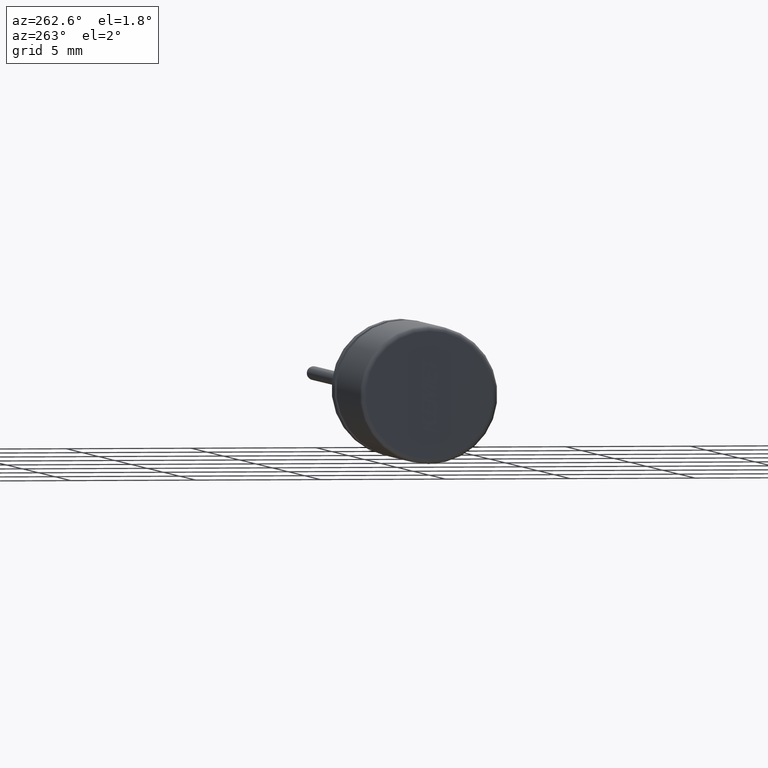
[diagram: clean part render]
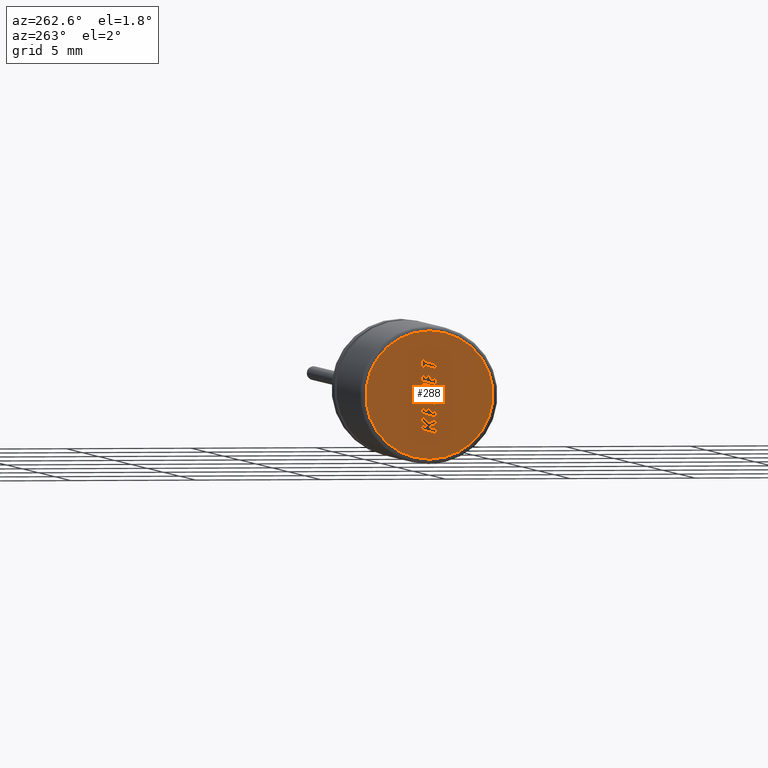
[diagram: same view with one face highlighted and labeled with its STEP entity id]
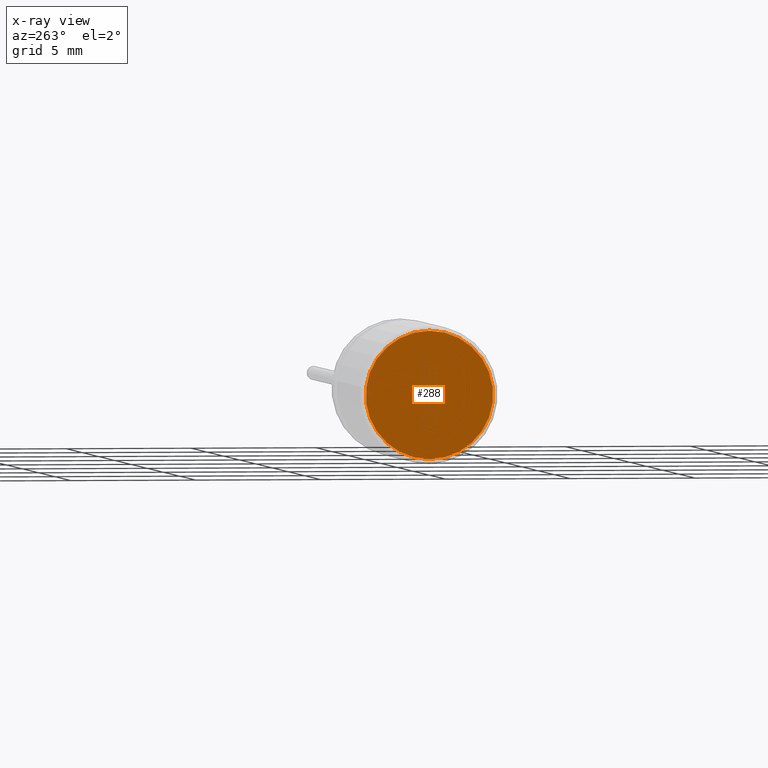
[diagram: x-ray of the same camera — body ghosted, the highlighted face saturated]
A machine part, auxiliary view. The second image highlights one B-rep face of the part: STEP entity #288.
The next image is the same camera in x-ray: the body ghosted, the highlighted face saturated — about 0% of this face is hidden behind the body in this view.
In plain terms, the highlighted planar face has unit normal (1, 0, 0).
Its self-contained STEP definition (entity closure, byte-faithful):
#31 = DIRECTION ( 'NONE',  ( 0.0000000000000000000, 0.0000000000000000000, -1.000000000000000000 ) ) ;
#50 = CARTESIAN_POINT ( 'NONE',  ( 0.0000000000000000000, 0.0000000000000000000, -2.549999999999999800 ) ) ;
#128 = DIRECTION ( 'NONE',  ( -1.000000000000000000, -0.0000000000000000000, -0.0000000000000000000 ) ) ;
#181 = CARTESIAN_POINT ( 'NONE',  ( 0.0000000000000000000, 0.0000000000000000000, 0.0000000000000000000 ) ) ;
#288 = ADVANCED_FACE ( 'NONE', ( #1024 ), #545, .F. ) ;
#304 = AXIS2_PLACEMENT_3D ( 'NONE', #181, #1467, #3065 ) ;
#545 = PLANE ( 'NONE',  #1832 ) ;
#860 = VERTEX_POINT ( 'NONE', #50 ) ;
#1024 = FACE_OUTER_BOUND ( 'NONE', #2288, .T. ) ;
#1467 = DIRECTION ( 'NONE',  ( -1.000000000000000000, -0.0000000000000000000, -0.0000000000000000000 ) ) ;
#1832 = AXIS2_PLACEMENT_3D ( 'NONE', #2958, #1867, #31 ) ;
#1842 = CARTESIAN_POINT ( 'NONE',  ( 0.0000000000000000000, 3.245314017740486000E-016, 2.549999999999999800 ) ) ;
#1866 = CIRCLE ( 'NONE', #304, 2.549999999999999800 ) ;
#1867 = DIRECTION ( 'NONE',  ( 1.000000000000000000, 0.0000000000000000000, 0.0000000000000000000 ) ) ;
#1949 = DIRECTION ( 'NONE',  ( 0.0000000000000000000, 0.0000000000000000000, -1.000000000000000000 ) ) ;
#1973 = CIRCLE ( 'NONE', #3380, 2.549999999999999800 ) ;
#2288 = EDGE_LOOP ( 'NONE', ( #2521, #2581 ) ) ;
#2399 = VERTEX_POINT ( 'NONE', #1842 ) ;
#2459 = CARTESIAN_POINT ( 'NONE',  ( 0.0000000000000000000, 0.0000000000000000000, 0.0000000000000000000 ) ) ;
#2521 = ORIENTED_EDGE ( 'NONE', *, *, #3150, .T. ) ;
#2581 = ORIENTED_EDGE ( 'NONE', *, *, #3044, .T. ) ;
#2958 = CARTESIAN_POINT ( 'NONE',  ( 0.0000000000000000000, 0.0000000000000000000, 0.0000000000000000000 ) ) ;
#3044 = EDGE_CURVE ( 'NONE', #2399, #860, #1973, .T. ) ;
#3065 = DIRECTION ( 'NONE',  ( 0.0000000000000000000, 0.0000000000000000000, -1.000000000000000000 ) ) ;
#3150 = EDGE_CURVE ( 'NONE', #860, #2399, #1866, .T. ) ;
#3380 = AXIS2_PLACEMENT_3D ( 'NONE', #2459, #128, #1949 ) ;